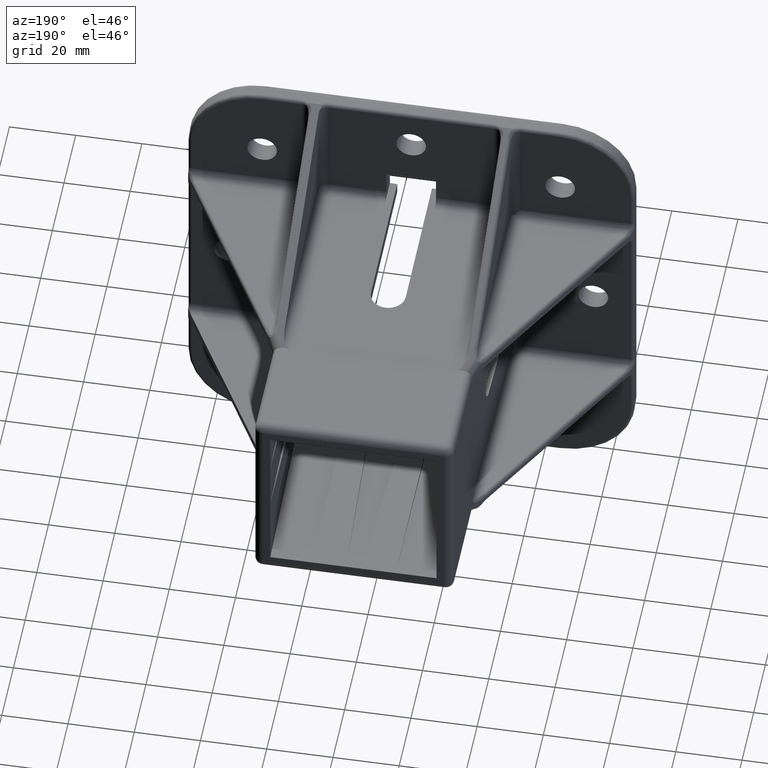
[diagram: clean part render]
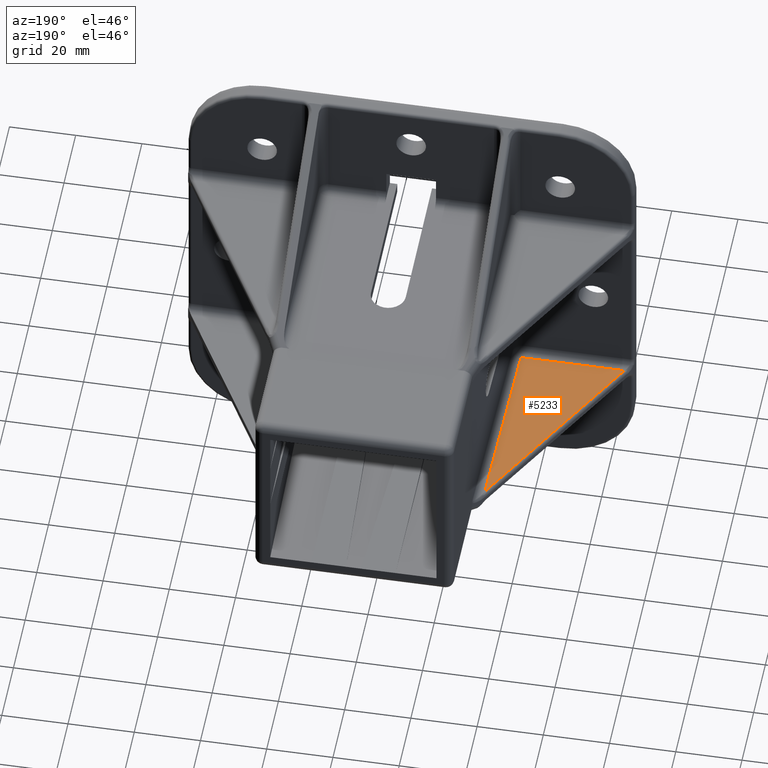
[diagram: same view with one face highlighted and labeled with its STEP entity id]
A machine part, auxiliary view. The second image highlights one B-rep face of the part: STEP entity #5233.
In plain terms, the highlighted planar face has unit normal (-0, 0, 1).
Its self-contained STEP definition (entity closure, byte-faithful):
#273=PLANE('',#5671);
#709=LINE('',#9115,#1149);
#710=LINE('',#9117,#1150);
#711=LINE('',#9118,#1151);
#1149=VECTOR('',#6949,56.402748555383);
#1150=VECTOR('',#6950,64.9184976344559);
#1151=VECTOR('',#6951,31.1732211425797);
#1415=FACE_OUTER_BOUND('',#1735,.T.);
#1735=EDGE_LOOP('',(#4370,#4371,#4372));
#2622=VERTEX_POINT('',#9113);
#2623=VERTEX_POINT('',#9114);
#2624=VERTEX_POINT('',#9116);
#3268=EDGE_CURVE('',#2622,#2623,#709,.T.);
#3269=EDGE_CURVE('',#2623,#2624,#710,.T.);
#3270=EDGE_CURVE('',#2624,#2622,#711,.T.);
#4370=ORIENTED_EDGE('',*,*,#3268,.T.);
#4371=ORIENTED_EDGE('',*,*,#3269,.T.);
#4372=ORIENTED_EDGE('',*,*,#3270,.T.);
#5233=ADVANCED_FACE('',(#1415),#273,.T.);
#5671=AXIS2_PLACEMENT_3D('',#9112,#6947,#6948);
#6947=DIRECTION('center_axis',(-1.04744440165294E-14,0.,1.));
#6948=DIRECTION('ref_axis',(1.,0.,1.06581410364015E-14));
#6949=DIRECTION('',(0.0174524064372835,0.999847695156391,1.82804254181044E-16));
#6950=DIRECTION('',(-0.495353189095989,-0.868691670302204,-5.18854924759524E-15));
#6951=DIRECTION('',(1.,0.,1.04744440165294E-14));
#9112=CARTESIAN_POINT('Origin',(2.88047210454558E-13,0.,-27.5));
#9113=CARTESIAN_POINT('',(-33.6000499105874,8.5,-27.5000000000004));
#9114=CARTESIAN_POINT('',(-32.615686218619,64.8941581435852,-27.5000000000003));
#9115=CARTESIAN_POINT('',(-33.7381386502918,0.588901400698057,-27.5000000000004));
#9116=CARTESIAN_POINT('',(-64.7732710531672,8.5,-27.5000000000007));
#9117=CARTESIAN_POINT('',(-52.5371719008808,29.9582193969146,-27.5000000000006));
#9118=CARTESIAN_POINT('',(2.88047210454558E-13,8.5,-27.5));